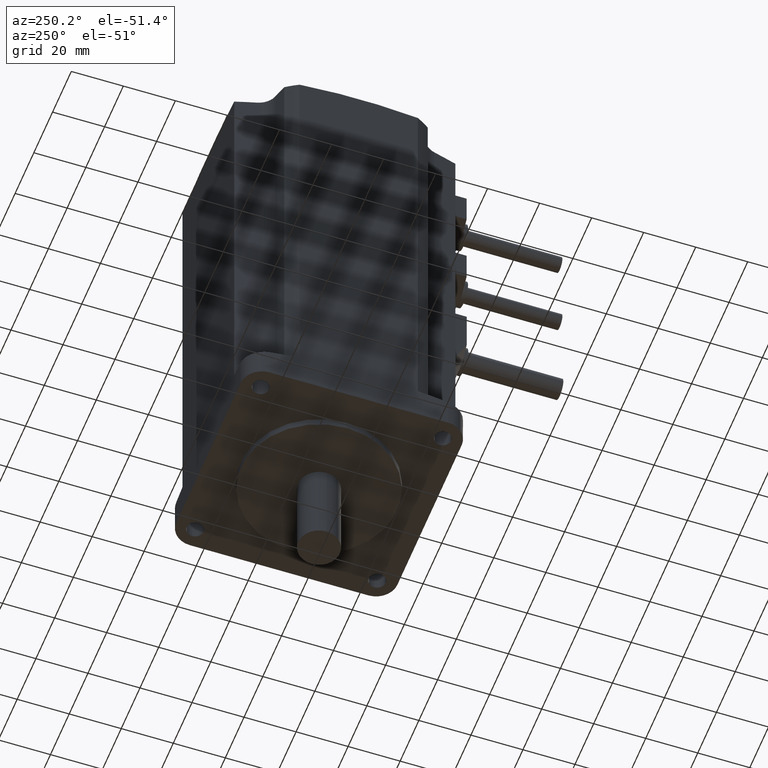
[diagram: clean part render]
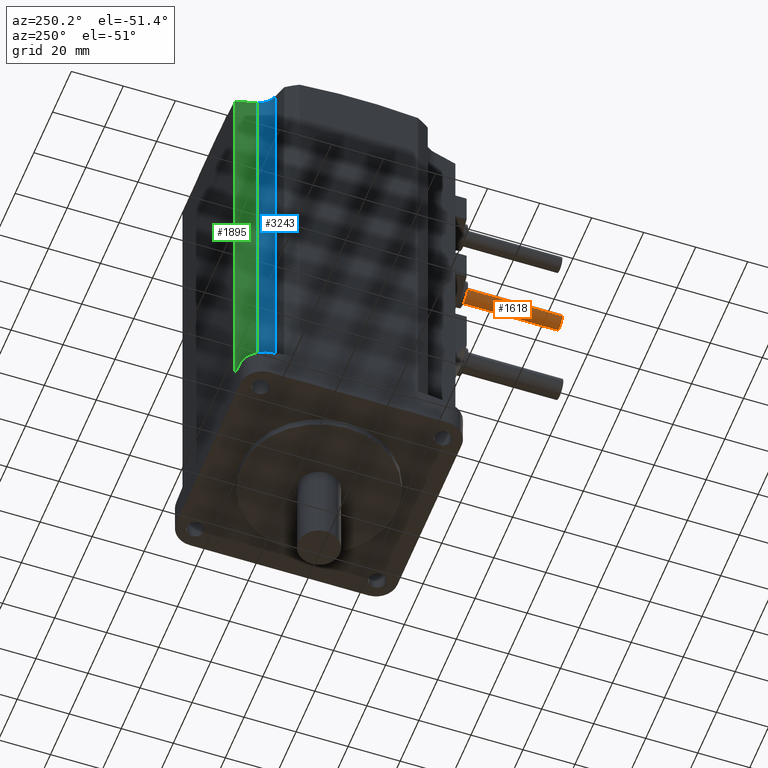
[diagram: same view with three faces highlighted in distinct colors, each labeled with its STEP entity id]
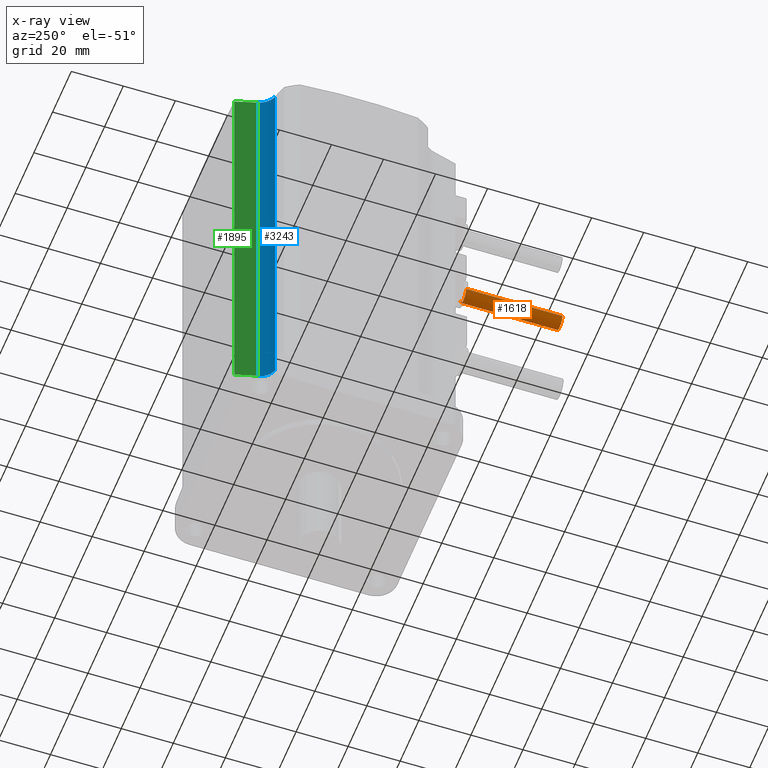
[diagram: x-ray of the same camera — body ghosted, the three highlighted faces saturated]
A machine part, auxiliary view with three faces highlighted in distinct colors.
The next image is the same camera in x-ray (body ghosted, the three faces saturated) — at least one of them is partly hidden behind the body in this view.
Their STEP definitions:

[orange] entity #1618 — the highlighted cylindrical surface (edge-blend (fillet) strip) has radius 3 mm, axis along (-0, 1, -0).
#18 = VERTEX_POINT ( 'NONE', #2172 ) ;
#51 = CIRCLE ( 'NONE', #3238, 3.000000000000002665 ) ;
#91 = CIRCLE ( 'NONE', #756, 3.000000000000002665 ) ;
#269 = CARTESIAN_POINT ( 'NONE',  ( -2.999999999999950706, -362.5000000000000000, 132.9999999999999716 ) ) ;
#526 = VERTEX_POINT ( 'NONE', #3844 ) ;
#680 = EDGE_CURVE ( 'NONE', #18, #526, #91, .T. ) ;
#756 = AXIS2_PLACEMENT_3D ( 'NONE', #3140, #2776, #4396 ) ;
#779 = DIRECTION ( 'NONE',  ( 0.0000000000000000000, 1.000000000000000000, 0.0000000000000000000 ) ) ;
#1141 = CARTESIAN_POINT ( 'NONE',  ( 5.224578939412501107E-14, -362.5000000000000000, 132.9999999999999716 ) ) ;
#1278 = ORIENTED_EDGE ( 'NONE', *, *, #4859, .F. ) ;
#1455 = LINE ( 'NONE', #269, #4534 ) ;
#1587 = DIRECTION ( 'NONE',  ( 0.0000000000000000000, 0.0000000000000000000, 1.000000000000000000 ) ) ;
#1599 = EDGE_LOOP ( 'NONE', ( #1278, #2890, #3343, #4613 ) ) ;
#1618 = ADVANCED_FACE ( 'NONE', ( #3141 ), #4778, .T. ) ;
#1643 = VERTEX_POINT ( 'NONE', #1687 ) ;
#1687 = CARTESIAN_POINT ( 'NONE',  ( -3.000000000000000888, -55.50000000000004974, 132.9999999999999716 ) ) ;
#2038 = CARTESIAN_POINT ( 'NONE',  ( 3.000000000000004885, -55.50000000000004974, 132.9999999999999716 ) ) ;
#2110 = AXIS2_PLACEMENT_3D ( 'NONE', #1141, #4375, #2347 ) ;
#2172 = CARTESIAN_POINT ( 'NONE',  ( 3.000000000000011546, -92.50000000000002842, 132.9999999999999716 ) ) ;
#2347 = DIRECTION ( 'NONE',  ( -1.000000000000000000, 0.0000000000000000000, 0.0000000000000000000 ) ) ;
#2776 = DIRECTION ( 'NONE',  ( 0.0000000000000000000, 1.000000000000000000, 0.0000000000000000000 ) ) ;
#2890 = ORIENTED_EDGE ( 'NONE', *, *, #680, .T. ) ;
#2922 = VECTOR ( 'NONE', #5160, 1000.000000000000000 ) ;
#3140 = CARTESIAN_POINT ( 'NONE',  ( 8.163404592832035149E-15, -92.50000000000002842, 132.9999999999999716 ) ) ;
#3141 = FACE_OUTER_BOUND ( 'NONE', #1599, .T. ) ;
#3238 = AXIS2_PLACEMENT_3D ( 'NONE', #4865, #779, #1587 ) ;
#3343 = ORIENTED_EDGE ( 'NONE', *, *, #4839, .T. ) ;
#3844 = CARTESIAN_POINT ( 'NONE',  ( -2.999999999999994227, -92.50000000000002842, 132.9999999999999716 ) ) ;
#3900 = EDGE_CURVE ( 'NONE', #3933, #1643, #51, .T. ) ;
#3933 = VERTEX_POINT ( 'NONE', #2038 ) ;
#4271 = CARTESIAN_POINT ( 'NONE',  ( 3.000000000000054623, -362.5000000000000000, 132.9999999999999716 ) ) ;
#4375 = DIRECTION ( 'NONE',  ( -1.632680918566406793E-16, 1.000000000000000000, -0.0000000000000000000 ) ) ;
#4396 = DIRECTION ( 'NONE',  ( 0.0000000000000000000, 0.0000000000000000000, 1.000000000000000000 ) ) ;
#4534 = VECTOR ( 'NONE', #5090, 1000.000000000000000 ) ;
#4613 = ORIENTED_EDGE ( 'NONE', *, *, #3900, .F. ) ;
#4693 = LINE ( 'NONE', #4271, #2922 ) ;
#4778 = CYLINDRICAL_SURFACE ( 'NONE', #2110, 3.000000000000002665 ) ;
#4839 = EDGE_CURVE ( 'NONE', #526, #1643, #1455, .T. ) ;
#4859 = EDGE_CURVE ( 'NONE', #18, #3933, #4693, .T. ) ;
#4865 = CARTESIAN_POINT ( 'NONE',  ( 2.122485194136333367E-15, -55.50000000000004974, 132.9999999999999716 ) ) ;
#5090 = DIRECTION ( 'NONE',  ( -1.632680918566406793E-16, 1.000000000000000000, -0.0000000000000000000 ) ) ;
#5160 = DIRECTION ( 'NONE',  ( -1.632680918566406793E-16, 1.000000000000000000, -0.0000000000000000000 ) ) ;

[blue] entity #3243 — the highlighted cylindrical surface (edge-blend (fillet) strip) has radius 6.2 mm, axis along (-0, -0, -1).
#177 = CARTESIAN_POINT ( 'NONE',  ( -30.24056762302149437, 31.01458720986288853, 172.7999902181730363 ) ) ;
#314 = DIRECTION ( 'NONE',  ( -0.0000000000000000000, -0.0000000000000000000, -1.000000000000000000 ) ) ;
#369 = ORIENTED_EDGE ( 'NONE', *, *, #872, .F. ) ;
#444 = VERTEX_POINT ( 'NONE', #5120 ) ;
#556 = ORIENTED_EDGE ( 'NONE', *, *, #4017, .T. ) ;
#574 = CARTESIAN_POINT ( 'NONE',  ( -28.86919802653621758, 34.07627538618240237, 172.4967571973375016 ) ) ;
#588 = VECTOR ( 'NONE', #314, 1000.000000000000000 ) ;
#661 = VERTEX_POINT ( 'NONE', #3546 ) ;
#872 = EDGE_CURVE ( 'NONE', #661, #444, #2313, .T. ) ;
#915 = CARTESIAN_POINT ( 'NONE',  ( -29.69858811958233247, 31.77042984928221614, 172.7616510106243197 ) ) ;
#999 = DIRECTION ( 'NONE',  ( -0.0000000000000000000, -0.0000000000000000000, -1.000000000000000000 ) ) ;
#1019 = CARTESIAN_POINT ( 'NONE',  ( -35.00000000000000000, 35.00000000000000000, 100.9999999999999858 ) ) ;
#1753 = CARTESIAN_POINT ( 'NONE',  ( -30.04521705179144320, 31.26031856699229650, 172.7909595438525514 ) ) ;
#1798 = AXIS2_PLACEMENT_3D ( 'NONE', #1019, #1808, #4574 ) ;
#1808 = DIRECTION ( 'NONE',  ( -0.0000000000000000000, -0.0000000000000000000, -1.000000000000000000 ) ) ;
#1862 = CARTESIAN_POINT ( 'NONE',  ( -35.00000000000000000, 35.00000000000000000, 14.00000000000000000 ) ) ;
#1874 = CIRCLE ( 'NONE', #4418, 6.199999999999997513 ) ;
#1887 = ORIENTED_EDGE ( 'NONE', *, *, #2270, .T. ) ;
#2071 = FACE_OUTER_BOUND ( 'NONE', #2880, .T. ) ;
#2092 = EDGE_CURVE ( 'NONE', #3041, #2995, #2819, .T. ) ;
#2176 = CARTESIAN_POINT ( 'NONE',  ( -28.86919802653621758, 34.07627538618240237, 172.4967571973375016 ) ) ;
#2270 = EDGE_CURVE ( 'NONE', #2995, #444, #1874, .T. ) ;
#2313 = LINE ( 'NONE', #3937, #588 ) ;
#2819 = LINE ( 'NONE', #4016, #3050 ) ;
#2880 = EDGE_LOOP ( 'NONE', ( #1887, #369, #556, #4467 ) ) ;
#2948 = CARTESIAN_POINT ( 'NONE',  ( -28.91517912084283282, 33.77109678695461525, 172.5432918352819627 ) ) ;
#2982 = DIRECTION ( 'NONE',  ( 1.000000000000000000, 0.0000000000000000000, 0.0000000000000000000 ) ) ;
#2995 = VERTEX_POINT ( 'NONE', #4182 ) ;
#3041 = VERTEX_POINT ( 'NONE', #574 ) ;
#3050 = VECTOR ( 'NONE', #3588, 1000.000000000000000 ) ;
#3243 = ADVANCED_FACE ( 'NONE', ( #2071 ), #4465, .F. ) ;
#3317 = CARTESIAN_POINT ( 'NONE',  ( -29.54538283461942427, 32.03659902708749030, 172.7413978321795867 ) ) ;
#3347 = CARTESIAN_POINT ( 'NONE',  ( -29.16508327599964545, 32.88128721322837578, 172.6581129662017418 ) ) ;
#3365 = CARTESIAN_POINT ( 'NONE',  ( -30.66095710256629658, 30.56058355264456949, 172.8060156242019048 ) ) ;
#3392 = CARTESIAN_POINT ( 'NONE',  ( -32.99911735836808901, 29.09922178687214611, 172.6488046165583228 ) ) ;
#3546 = CARTESIAN_POINT ( 'NONE',  ( -33.60182086453011152, 28.95971067703403179, 172.5656754473278056 ) ) ;
#3588 = DIRECTION ( 'NONE',  ( -0.0000000000000000000, -0.0000000000000000000, -1.000000000000000000 ) ) ;
#3715 = CARTESIAN_POINT ( 'NONE',  ( -33.60182086453011152, 28.95971067703403179, 172.5656754473278056 ) ) ;
#3773 = CARTESIAN_POINT ( 'NONE',  ( -31.62470081191837323, 29.79006354058095951, 172.7713783929729061 ) ) ;
#3937 = CARTESIAN_POINT ( 'NONE',  ( -33.60182086453011152, 28.95971067703403889, 100.9999999999999858 ) ) ;
#4016 = CARTESIAN_POINT ( 'NONE',  ( -28.86919802653621758, 34.07627538618240237, 100.9999999999999858 ) ) ;
#4017 = EDGE_CURVE ( 'NONE', #661, #3041, #4907, .T. ) ;
#4171 = CARTESIAN_POINT ( 'NONE',  ( -28.98355971834867262, 33.47106462328458321, 172.5848645843036024 ) ) ;
#4182 = CARTESIAN_POINT ( 'NONE',  ( -28.86919802653621758, 34.07627538618240237, 13.99999999999999822 ) ) ;
#4418 = AXIS2_PLACEMENT_3D ( 'NONE', #1862, #999, #2982 ) ;
#4465 = CYLINDRICAL_SURFACE ( 'NONE', #1798, 6.199999999999997513 ) ;
#4467 = ORIENTED_EDGE ( 'NONE', *, *, #2092, .T. ) ;
#4574 = DIRECTION ( 'NONE',  ( -1.000000000000000000, 0.0000000000000000000, 0.0000000000000000000 ) ) ;
#4602 = CARTESIAN_POINT ( 'NONE',  ( -32.42941891449978442, 29.32404695545663031, 172.7106493622505639 ) ) ;
#4628 = CARTESIAN_POINT ( 'NONE',  ( -30.88637310953146908, 30.35103542557668632, 172.8031714663143248 ) ) ;
#4907 = B_SPLINE_CURVE_WITH_KNOTS ( 'NONE', 3,
 ( #3715, #3392, #4602, #3773, #4946, #4628, #3365, #177, #1753, #915, #3317, #4995, #3347, #4171, #2948, #2176 ),
 .UNSPECIFIED., .F., .F.,
 ( 4, 2, 2, 2, 2, 2, 2, 4 ),
 ( 2.042416867789492952E-07, 0.001846673388247560468, 0.002769907961527962124, 0.003693142534808364647, 0.004616377108088766737, 0.005539611681369169260, 0.006462846254649570917, 0.007386080827929973440 ),
 .UNSPECIFIED. ) ;
#4946 = CARTESIAN_POINT ( 'NONE',  ( -31.36721267983572758, 29.96634783733693652, 172.7859352926307110 ) ) ;
#4995 = CARTESIAN_POINT ( 'NONE',  ( -29.27887573583408809, 32.59098964280033783, 172.6897710438711329 ) ) ;
#5120 = CARTESIAN_POINT ( 'NONE',  ( -33.60182086453011152, 28.95971067703403889, 13.99999999999999822 ) ) ;

[green] entity #1895 — the highlighted planar face has unit normal (0.9888, -0.149, 0).
#141 = EDGE_CURVE ( 'NONE', #2355, #2995, #1685, .T. ) ;
#198 = CARTESIAN_POINT ( 'NONE',  ( -27.60000000000000497, 42.50000000000002132, 100.9999999999999858 ) ) ;
#397 = DIRECTION ( 'NONE',  ( -0.1489878409383231794, -0.9888390279780308045, 0.0000000000000000000 ) ) ;
#453 = AXIS2_PLACEMENT_3D ( 'NONE', #3295, #4099, #2851 ) ;
#574 = CARTESIAN_POINT ( 'NONE',  ( -28.86919802653621758, 34.07627538618240237, 172.4967571973375016 ) ) ;
#580 = PLANE ( 'NONE',  #4065 ) ;
#618 = EDGE_CURVE ( 'NONE', #2355, #3374, #3623, .T. ) ;
#926 = DIRECTION ( 'NONE',  ( 0.1489878409383235125, 0.9888390279780308045, 0.0000000000000000000 ) ) ;
#988 = FACE_OUTER_BOUND ( 'NONE', #4850, .T. ) ;
#1162 = CARTESIAN_POINT ( 'NONE',  ( -33.24866455386491282, 5.009558285833493940, -180.7550785693529463 ) ) ;
#1417 = VERTEX_POINT ( 'NONE', #4248 ) ;
#1685 = LINE ( 'NONE', #2532, #5166 ) ;
#1895 = ADVANCED_FACE ( 'NONE', ( #988 ), #580, .F. ) ;
#1947 = DIRECTION ( 'NONE',  ( 0.9888390279780309156, -0.1489878409383235403, 0.0000000000000000000 ) ) ;
#1981 = ORIENTED_EDGE ( 'NONE', *, *, #618, .F. ) ;
#2092 = EDGE_CURVE ( 'NONE', #3041, #2995, #2819, .T. ) ;
#2113 = AXIS2_PLACEMENT_3D ( 'NONE', #1162, #4024, #397 ) ;
#2355 = VERTEX_POINT ( 'NONE', #3902 ) ;
#2532 = CARTESIAN_POINT ( 'NONE',  ( -27.60000000000000497, 42.50000000000002132, 13.99999999999999822 ) ) ;
#2819 = LINE ( 'NONE', #4016, #3050 ) ;
#2823 = CARTESIAN_POINT ( 'NONE',  ( -27.60000000000000497, 42.50000000000002132, 100.9999999999999858 ) ) ;
#2851 = DIRECTION ( 'NONE',  ( 0.1489878409383235403, 0.9888390279780306935, 2.486556454331189295E-14 ) ) ;
#2881 = ORIENTED_EDGE ( 'NONE', *, *, #3613, .T. ) ;
#2887 = EDGE_CURVE ( 'NONE', #1417, #3374, #3695, .T. ) ;
#2927 = CARTESIAN_POINT ( 'NONE',  ( -27.60000000000001563, 42.49999999999999289, 12.71840798629893321 ) ) ;
#2933 = DIRECTION ( 'NONE',  ( -0.0000000000000000000, -0.0000000000000000000, -1.000000000000000000 ) ) ;
#2995 = VERTEX_POINT ( 'NONE', #4182 ) ;
#3041 = VERTEX_POINT ( 'NONE', #574 ) ;
#3050 = VECTOR ( 'NONE', #3588, 1000.000000000000000 ) ;
#3295 = CARTESIAN_POINT ( 'NONE',  ( -33.24866455386491992, 5.009558285833494828, -22.45292056877140396 ) ) ;
#3323 = VECTOR ( 'NONE', #2933, 1000.000000000000000 ) ;
#3374 = VERTEX_POINT ( 'NONE', #2927 ) ;
#3588 = DIRECTION ( 'NONE',  ( -0.0000000000000000000, -0.0000000000000000000, -1.000000000000000000 ) ) ;
#3613 = EDGE_CURVE ( 'NONE', #3041, #1417, #5111, .T. ) ;
#3623 = CIRCLE ( 'NONE', #2113, 197.1533175758536629 ) ;
#3695 = LINE ( 'NONE', #2823, #3323 ) ;
#3810 = ORIENTED_EDGE ( 'NONE', *, *, #2887, .T. ) ;
#3902 = CARTESIAN_POINT ( 'NONE',  ( -28.68105111913554595, 35.32501490653202580, 13.99999999999995737 ) ) ;
#4016 = CARTESIAN_POINT ( 'NONE',  ( -28.86919802653621758, 34.07627538618240237, 100.9999999999999858 ) ) ;
#4024 = DIRECTION ( 'NONE',  ( -0.9888390279780309156, 0.1489878409383231794, 0.0000000000000000000 ) ) ;
#4065 = AXIS2_PLACEMENT_3D ( 'NONE', #198, #1947, #926 ) ;
#4099 = DIRECTION ( 'NONE',  ( -0.9888390279780308045, 0.1489878409383235403, -0.0000000000000000000 ) ) ;
#4182 = CARTESIAN_POINT ( 'NONE',  ( -28.86919802653621758, 34.07627538618240237, 13.99999999999999822 ) ) ;
#4212 = DIRECTION ( 'NONE',  ( -0.1489878409383235125, -0.9888390279780308045, 0.0000000000000000000 ) ) ;
#4248 = CARTESIAN_POINT ( 'NONE',  ( -27.60000000000000142, 42.50000000000003553, 171.0205659868804560 ) ) ;
#4695 = ORIENTED_EDGE ( 'NONE', *, *, #141, .T. ) ;
#4850 = EDGE_LOOP ( 'NONE', ( #3810, #1981, #4695, #4871, #2881 ) ) ;
#4871 = ORIENTED_EDGE ( 'NONE', *, *, #2092, .F. ) ;
#5111 = CIRCLE ( 'NONE', #453, 197.1533175758536913 ) ;
#5166 = VECTOR ( 'NONE', #4212, 1000.000000000000114 ) ;